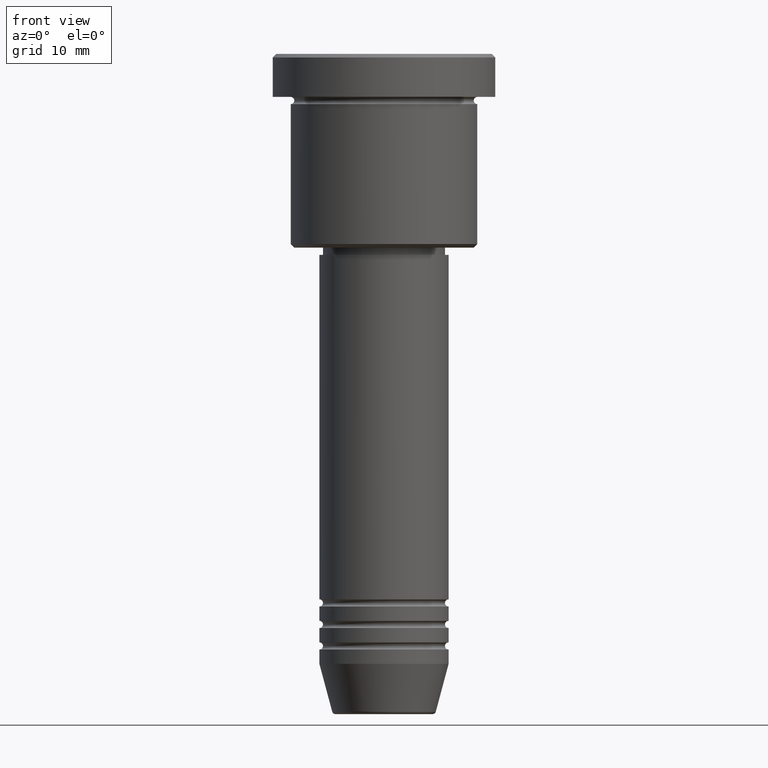
[diagram: clean part render]
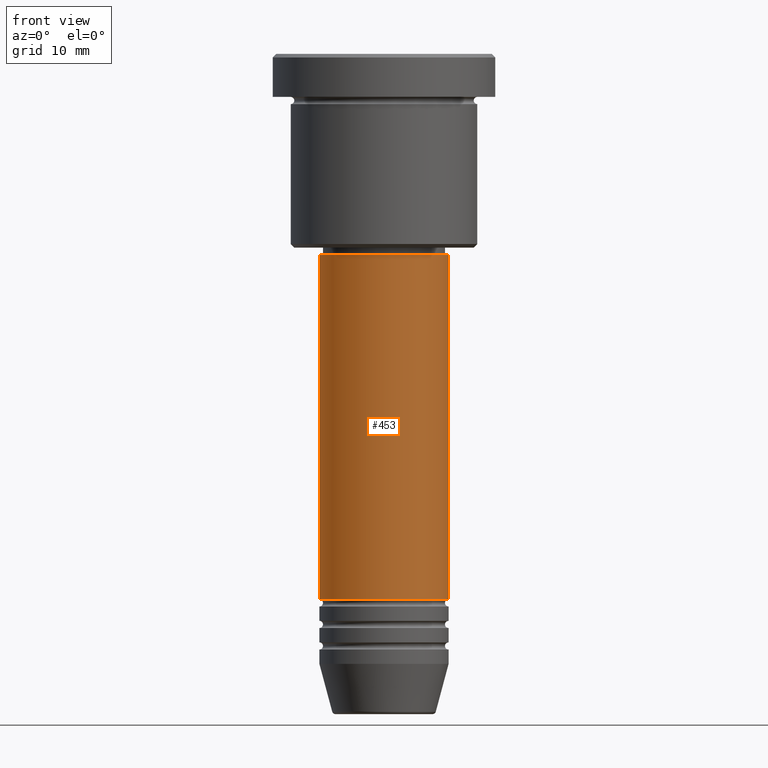
[diagram: same view with one face highlighted and labeled with its STEP entity id]
A machine part, front view. The second image highlights one B-rep face of the part: STEP entity #453.
In plain terms, the highlighted cylindrical surface (partial cylindrical patch) has radius 9 mm, axis along (-0, -0, 1).
Its self-contained STEP definition (entity closure, byte-faithful):
#39 = VERTEX_POINT ( 'NONE', #132 ) ;
#116 = VERTEX_POINT ( 'NONE', #1117 ) ;
#128 = DIRECTION ( 'NONE',  ( 1.000000000000000000, 0.000000000000000000, 0.000000000000000000 ) ) ;
#132 = CARTESIAN_POINT ( 'NONE',  ( 9.000000000000000000, 0.000000000000000000, -75.99999999999997158 ) ) ;
#139 = CARTESIAN_POINT ( 'NONE',  ( -9.000000000000000000, 1.102182119232617714E-15, 0.000000000000000000 ) ) ;
#165 = DIRECTION ( 'NONE',  ( -0.000000000000000000, -0.000000000000000000, 1.000000000000000000 ) ) ;
#267 = DIRECTION ( 'NONE',  ( -0.000000000000000000, -0.000000000000000000, 1.000000000000000000 ) ) ;
#269 = CARTESIAN_POINT ( 'NONE',  ( -9.000000000000000000, 1.102182119232617714E-15, -75.99999999999997158 ) ) ;
#307 = EDGE_LOOP ( 'NONE', ( #1041, #374, #863, #1015 ) ) ;
#359 = EDGE_CURVE ( 'NONE', #39, #795, #927, .T. ) ;
#370 = CARTESIAN_POINT ( 'NONE',  ( 9.000000000000000000, 0.000000000000000000, 0.000000000000000000 ) ) ;
#374 = ORIENTED_EDGE ( 'NONE', *, *, #518, .T. ) ;
#384 = DIRECTION ( 'NONE',  ( -0.000000000000000000, -0.000000000000000000, 1.000000000000000000 ) ) ;
#404 = LINE ( 'NONE', #139, #1065 ) ;
#426 = VERTEX_POINT ( 'NONE', #269 ) ;
#431 = DIRECTION ( 'NONE',  ( -0.000000000000000000, -0.000000000000000000, 1.000000000000000000 ) ) ;
#453 = ADVANCED_FACE ( 'NONE', ( #670 ), #1157, .T. ) ;
#464 = DIRECTION ( 'NONE',  ( 1.000000000000000000, 0.000000000000000000, 0.000000000000000000 ) ) ;
#467 = DIRECTION ( 'NONE',  ( -0.000000000000000000, -0.000000000000000000, 1.000000000000000000 ) ) ;
#518 = EDGE_CURVE ( 'NONE', #426, #39, #935, .T. ) ;
#582 = VECTOR ( 'NONE', #467, 1000.000000000000000 ) ;
#602 = CIRCLE ( 'NONE', #793, 9.000000000000000000 ) ;
#664 = AXIS2_PLACEMENT_3D ( 'NONE', #1093, #267, #128 ) ;
#670 = FACE_OUTER_BOUND ( 'NONE', #307, .T. ) ;
#793 = AXIS2_PLACEMENT_3D ( 'NONE', #867, #431, #962 ) ;
#795 = VERTEX_POINT ( 'NONE', #993 ) ;
#863 = ORIENTED_EDGE ( 'NONE', *, *, #359, .T. ) ;
#867 = CARTESIAN_POINT ( 'NONE',  ( 0.000000000000000000, 0.000000000000000000, -27.99999999999996803 ) ) ;
#871 = EDGE_CURVE ( 'NONE', #426, #116, #404, .T. ) ;
#924 = CARTESIAN_POINT ( 'NONE',  ( 0.000000000000000000, 0.000000000000000000, -75.99999999999997158 ) ) ;
#927 = LINE ( 'NONE', #370, #582 ) ;
#935 = CIRCLE ( 'NONE', #1126, 9.000000000000000000 ) ;
#962 = DIRECTION ( 'NONE',  ( 1.000000000000000000, 0.000000000000000000, 0.000000000000000000 ) ) ;
#993 = CARTESIAN_POINT ( 'NONE',  ( 9.000000000000000000, 0.000000000000000000, -27.99999999999996803 ) ) ;
#1015 = ORIENTED_EDGE ( 'NONE', *, *, #1088, .F. ) ;
#1041 = ORIENTED_EDGE ( 'NONE', *, *, #871, .F. ) ;
#1065 = VECTOR ( 'NONE', #384, 1000.000000000000000 ) ;
#1088 = EDGE_CURVE ( 'NONE', #116, #795, #602, .T. ) ;
#1093 = CARTESIAN_POINT ( 'NONE',  ( 0.000000000000000000, 0.000000000000000000, 0.000000000000000000 ) ) ;
#1117 = CARTESIAN_POINT ( 'NONE',  ( -9.000000000000000000, 1.102182119232617714E-15, -27.99999999999996803 ) ) ;
#1126 = AXIS2_PLACEMENT_3D ( 'NONE', #924, #165, #464 ) ;
#1157 = CYLINDRICAL_SURFACE ( 'NONE', #664, 9.000000000000000000 ) ;